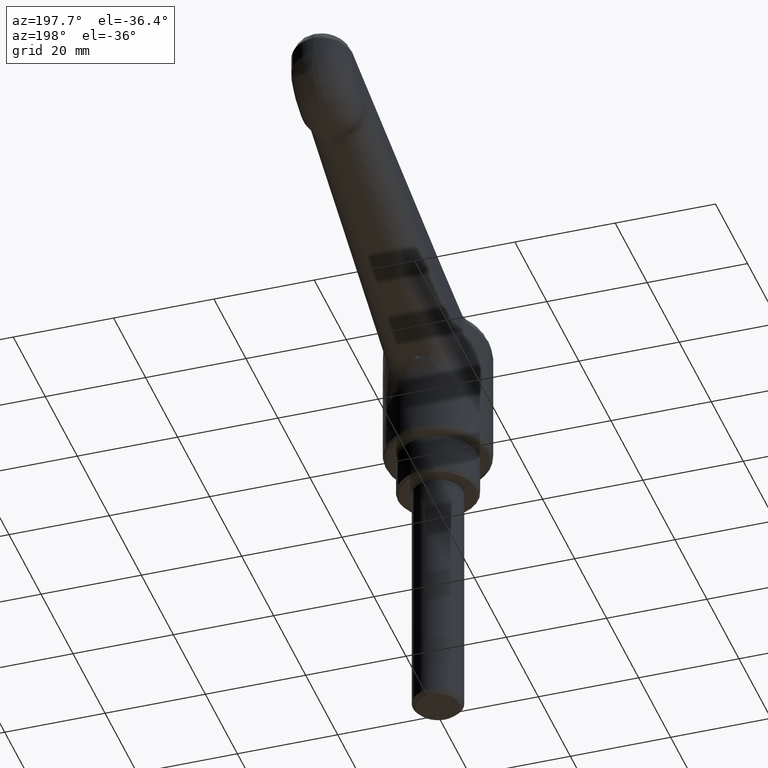
[diagram: clean part render]
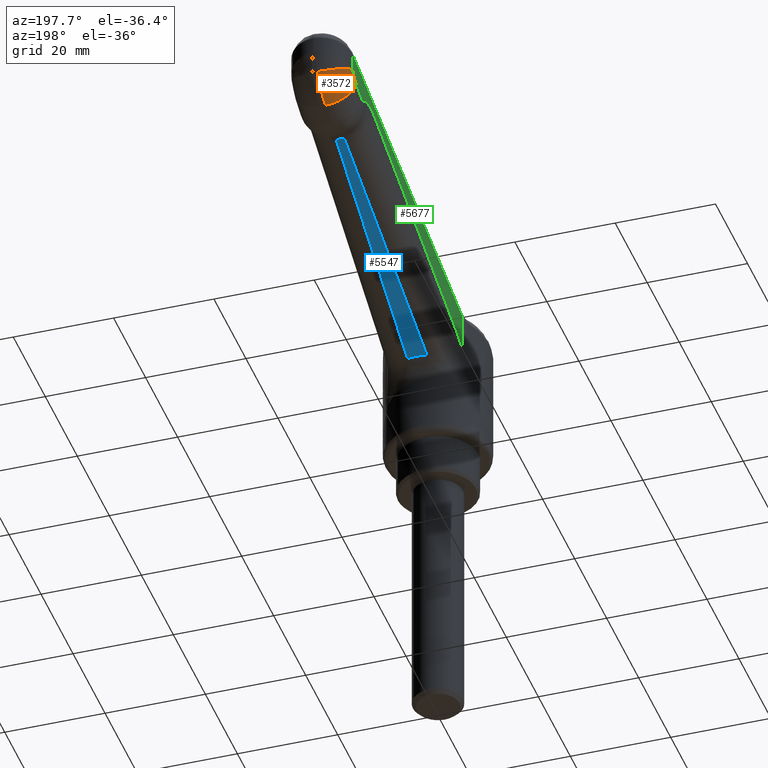
[diagram: same view with three faces highlighted in distinct colors, each labeled with its STEP entity id]
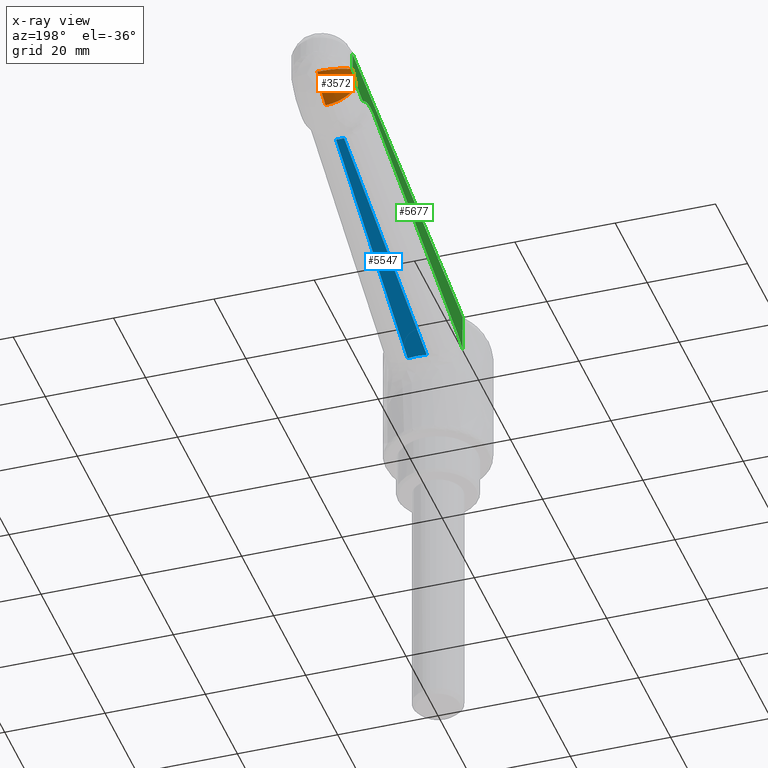
[diagram: x-ray of the same camera — body ghosted, the three highlighted faces saturated]
A machine part, auxiliary view with three faces highlighted in distinct colors.
The next image is the same camera in x-ray (body ghosted, the three faces saturated) — at least one of them is partly hidden behind the body in this view.
Their STEP definitions:

[orange] entity #3572 — the highlighted face is a freeform B-spline surface patch.
#3463=CARTESIAN_POINT('',(69.927543483221299,6.049651987873864,38.315105253744250));
#3464=CARTESIAN_POINT('',(70.397629439013087,6.038757118762429,38.516142541183221));
#3465=CARTESIAN_POINT('',(70.832931695780772,6.028668408276688,38.797957082615127));
#3466=CARTESIAN_POINT('',(71.584557010182024,6.011248488961188,39.491089099015149));
#3467=CARTESIAN_POINT('',(71.900639369220059,6.003922858642467,39.902184666008758));
#3468=CARTESIAN_POINT('',(72.139020671948728,5.998398053955486,40.354479944382227));
#3469=CARTESIAN_POINT('',(72.069531920331926,6.000008548470917,33.303798379318096));
#3470=CARTESIAN_POINT('',(73.103574868421873,5.976043223750905,33.760366379588326));
#3471=CARTESIAN_POINT('',(74.056885869937247,5.953948969594414,34.392639616912099));
#3472=CARTESIAN_POINT('',(75.698492717429673,5.915902541032712,35.934999236902875));
#3473=CARTESIAN_POINT('',(76.386333660197678,5.899960909621694,36.844611654713674));
#3474=CARTESIAN_POINT('',(76.904313322143608,5.887956039975062,37.841593131860911));
#3475=CARTESIAN_POINT('',(71.962772482818480,0.551128534819699,33.258141563875867));
#3476=CARTESIAN_POINT('',(73.007407841583259,0.540233666735947,33.704891049358523));
#3477=CARTESIAN_POINT('',(73.974746288501407,0.530144955222584,34.331145628035301));
#3478=CARTESIAN_POINT('',(75.645024764958166,0.512725035906962,35.871438997809271));
#3479=CARTESIAN_POINT('',(76.347429950218100,0.505399406183320,36.784984594009487));
#3480=CARTESIAN_POINT('',(76.877166235546099,0.499874600901322,37.790085320849151));
#3488=(BOUNDED_SURFACE()B_SPLINE_SURFACE(3,2,((#3463,#3469,#3475),(#3464,#3470,#3476),(#3465,#3471,#3477),(#3466,#3472,#3478),(#3467,#3473,#3479),(#3468,#3474,#3480)),.UNSPECIFIED.,.F.,.F.,.U.)B_SPLINE_SURFACE_WITH_KNOTS((4,2,4),(3,3),(0.0,3.408621642746630,6.817243285493260),(0.0,9.054046237050114),.UNSPECIFIED.)GEOMETRIC_REPRESENTATION_ITEM()RATIONAL_B_SPLINE_SURFACE(((1.0,0.710320617835371,1.0),(1.0,0.711172731616030,1.0),(1.0,0.711959776844960,1.0),(1.0,0.713317426405004,1.0),(1.0,0.713887890644124,1.0),(1.0,0.714316969421183,1.0)))REPRESENTATION_ITEM('')SURFACE());
#3489=CARTESIAN_POINT('',(72.000023528322998,0.550739038748915,33.274163563556897));
#3490=VERTEX_POINT('',#3489);
#3491=CARTESIAN_POINT('',(70.063429511224399,6.046502647905560,38.375896371800998));
#3492=VERTEX_POINT('',#3491);
#3493=CARTESIAN_POINT('',(72.000023528322998,0.550739038748915,33.274163563556897));
#3494=CARTESIAN_POINT('',(72.007166397801996,0.911801240651604,33.277252638479297));
#3495=CARTESIAN_POINT('',(72.001166363362088,1.266840342186170,33.313035923218827));
#3496=CARTESIAN_POINT('',(71.973236535773040,1.790735571573768,33.413730489337297));
#3497=CARTESIAN_POINT('',(71.960748016607710,1.963912799923760,33.455189429724889));
#3498=CARTESIAN_POINT('',(71.937134090348124,2.221448580939451,33.529479038425933));
#3499=CARTESIAN_POINT('',(71.928435714026463,2.307028430277768,33.556299191044090));
#3500=CARTESIAN_POINT('',(71.909422932034232,2.476967483411021,33.613912717264988));
#3501=CARTESIAN_POINT('',(71.899164644148911,2.560845644494711,33.644537234456877));
#3502=CARTESIAN_POINT('',(71.844186401287274,2.974891842412649,33.806560035205941));
#3503=CARTESIAN_POINT('',(71.788512162607702,3.289176326647948,33.964409599192287));
#3504=CARTESIAN_POINT('',(71.704366047852517,3.661070665650973,34.196594401032932));
#3505=CARTESIAN_POINT('',(71.686802555067445,3.734392144138405,34.244790473427059));
#3506=CARTESIAN_POINT('',(71.650181532498436,3.878888057804530,34.344753421321983));
#3507=CARTESIAN_POINT('',(71.631081281995236,3.950211810226688,34.396635691628333));
#3508=CARTESIAN_POINT('',(71.571784225757426,4.159836696211473,34.556946081543749));
#3509=CARTESIAN_POINT('',(71.529873583556395,4.292893776920911,34.669280705176341));
#3510=CARTESIAN_POINT('',(71.397191912108937,4.672637834166773,35.022119692253931));
#3511=CARTESIAN_POINT('',(71.299538837916813,4.900077983935419,35.278313369200163));
#3512=CARTESIAN_POINT('',(71.165563727975808,5.151576198238973,35.625226156649653));
#3513=CARTESIAN_POINT('',(71.138093222684191,5.200343157029159,35.696145769297452));
#3514=CARTESIAN_POINT('',(71.082308437867525,5.293846083585770,35.839729983727771));
#3515=CARTESIAN_POINT('',(71.054036786303371,5.338527912951451,35.912286175835000));
#3516=CARTESIAN_POINT('',(70.968097999832295,5.466484705255413,36.132199428769489));
#3517=CARTESIAN_POINT('',(70.850521583717821,5.620885657406291,36.431392534705900));
#3518=CARTESIAN_POINT('',(70.726973624763900,5.743427356154239,36.742294917366948));
#3519=CARTESIAN_POINT('',(70.632010053795938,5.823253646501218,36.979896281028523));
#3520=CARTESIAN_POINT('',(70.599971039926061,5.847845600342319,37.059835415490070));
#3521=CARTESIAN_POINT('',(70.535104309630569,5.892929720532480,37.221212465426213));
#3522=CARTESIAN_POINT('',(70.502202065343283,5.913459671049195,37.302834376970630));
#3523=CARTESIAN_POINT('',(70.402950644630749,5.968398608358492,37.548322316090932));
#3524=CARTESIAN_POINT('',(70.336054239866613,5.996229846461312,37.712824755208317));
#3525=CARTESIAN_POINT('',(70.234579572771551,6.024928858326964,37.960810343032961));
#3526=CARTESIAN_POINT('',(70.200565963864733,6.032316613386159,38.043677884911837));
#3527=CARTESIAN_POINT('',(70.149254240226611,6.040113045959479,38.168286602543589));
#3528=CARTESIAN_POINT('',(70.123525511154924,6.043189594152286,38.230667844127872));
#3529=CARTESIAN_POINT('',(70.097685560193838,6.045027005165708,38.293164486157423));
#3530=CARTESIAN_POINT('',(70.080433968967796,6.045975604977158,38.334854586955302));
#3531=CARTESIAN_POINT('',(70.071946785798659,6.046305244205724,38.355340508303762));
#3532=CARTESIAN_POINT('',(70.063429511224399,6.046502647905560,38.375896371800998));
#3533=B_SPLINE_CURVE_WITH_KNOTS('',3,(#3493,#3494,#3495,#3496,#3497,#3498,#3499,#3500,#3501,#3502,#3503,#3504,#3505,#3506,#3507,#3508,#3509,#3510,#3511,#3512,#3513,#3514,#3515,#3516,#3517,#3518,#3519,#3520,#3521,#3522,#3523,#3524,#3525,#3526,#3527,#3528,#3529,#3530,#3531,#3532),.UNSPECIFIED.,.F.,.U.,(4,2,2,2,2,2,2,2,2,2,2,2,1,2,2,2,2,2,1,2,4),(0.0,0.124999999999996,0.187499999999993,0.218749999999992,0.249999999999990,0.374999999999984,0.406249999999983,0.437499999999982,0.499999999999982,0.624999999999980,0.656249999999981,0.687499999999982,0.749999999999984,0.812499999999986,0.843749999999989,0.874999999999992,0.937499999999994,0.968749999999996,0.984374999999998,0.992187499999999,1.0),.UNSPECIFIED.);
#3534=EDGE_CURVE('',#3490,#3492,#3533,.T.);
#3535=ORIENTED_EDGE('',*,*,#3534,.T.);
#3536=CARTESIAN_POINT('',(72.139020671948700,5.998398053955600,40.354479944382241));
#3537=VERTEX_POINT('',#3536);
#3538=CARTESIAN_POINT('',(72.139020671948700,5.998398053955600,40.354479944382241));
#3539=CARTESIAN_POINT('',(71.919481195193285,6.003486174190901,39.937459596193079));
#3540=CARTESIAN_POINT('',(71.329273224497328,6.017165031238345,39.149041725567649));
#3541=CARTESIAN_POINT('',(70.517996172529223,6.035967459146099,38.587957232286612));
#3542=CARTESIAN_POINT('',(70.063429511224399,6.046502647905560,38.375896371800998));
#3543=B_SPLINE_CURVE_WITH_KNOTS('',3,(#3538,#3539,#3540,#3541,#3542),.UNSPECIFIED.,.F.,.U.,(4,1,4),(0.000000017542845,1.413835292445219,2.918853842913046),.UNSPECIFIED.);
#3544=EDGE_CURVE('',#3537,#3492,#3543,.T.);
#3545=ORIENTED_EDGE('',*,*,#3544,.F.);
#3546=CARTESIAN_POINT('',(76.877166235546099,0.499874600901440,37.790085320849101));
#3547=VERTEX_POINT('',#3546);
#3548=CARTESIAN_POINT('',(72.139020671948700,5.998398053955600,40.354479944382241));
#3549=CARTESIAN_POINT('',(72.610347016406550,5.987709515617219,40.105937796224332));
#3550=CARTESIAN_POINT('',(73.294854557937953,5.857685483075139,39.743581245761980));
#3551=CARTESIAN_POINT('',(74.299054377176702,5.406225905751520,39.208805185379369));
#3552=CARTESIAN_POINT('',(75.181392336425105,4.771108648322166,38.736012783606512));
#3553=CARTESIAN_POINT('',(75.920560157364221,3.870357948929474,38.335433187844409));
#3554=CARTESIAN_POINT('',(76.391238515926034,2.971867304277374,38.076388021540822));
#3555=CARTESIAN_POINT('',(76.765656568423708,1.920729649035824,37.866212063689993));
#3556=CARTESIAN_POINT('',(76.880384924100170,1.077218228226975,37.795441192828477));
#3557=CARTESIAN_POINT('',(76.877166235546099,0.499874600901440,37.790085320849101));
#3558=B_SPLINE_CURVE_WITH_KNOTS('',3,(#3548,#3549,#3550,#3551,#3552,#3553,#3554,#3555,#3556,#3557),.UNSPECIFIED.,.F.,.U.,(4,1,1,1,1,1,1,4),(0.000000105451647,1.598746205859788,2.331518734475806,3.663837708120269,5.129331440167524,5.995325022927320,6.794706968964809,8.526687954611226),.UNSPECIFIED.);
#3559=EDGE_CURVE('',#3537,#3547,#3558,.T.);
#3560=ORIENTED_EDGE('',*,*,#3559,.T.);
#3561=CARTESIAN_POINT('',(72.000023528322998,0.550739038748915,33.274163563556897));
#3562=CARTESIAN_POINT('',(72.874755309027776,0.541616288689763,33.652049526885463));
#3563=CARTESIAN_POINT('',(74.119665176564922,0.528632901558861,34.417900281001117));
#3564=CARTESIAN_POINT('',(75.748464190350163,0.511645923979434,35.991558852546262));
#3565=CARTESIAN_POINT('',(76.498894999780873,0.503819609895068,37.071904016871549));
#3566=CARTESIAN_POINT('',(76.877166235546099,0.499874600901440,37.790085320849101));
#3567=B_SPLINE_CURVE_WITH_KNOTS('',3,(#3561,#3562,#3563,#3564,#3565,#3566),.UNSPECIFIED.,.F.,.U.,(4,1,1,4),(0.000000013967038,2.858589835511313,4.340809821312137,6.775908831508069),.UNSPECIFIED.);
#3568=EDGE_CURVE('',#3490,#3547,#3567,.T.);
#3569=ORIENTED_EDGE('',*,*,#3568,.F.);
#3570=EDGE_LOOP('',(#3535,#3545,#3560,#3569));
#3571=FACE_OUTER_BOUND('',#3570,.T.);
#3572=ADVANCED_FACE('',(#3571),#3488,.T.);

[blue] entity #5547 — the highlighted face is a freeform B-spline surface patch.
#3171=CARTESIAN_POINT('',(61.163736130805503,-0.794885205271934,33.054697017193099));
#3172=VERTEX_POINT('',#3171);
#3226=CARTESIAN_POINT('',(13.005437633756101,-1.911018015219480,15.526517656288650));
#3227=VERTEX_POINT('',#3226);
#3243=CARTESIAN_POINT('',(61.163736130805503,-0.794885205271934,33.054697017193099));
#3244=CARTESIAN_POINT('',(13.005437633756101,-1.911018015219480,15.526517656288650));
#3245=QUASI_UNIFORM_CURVE('',1,(#3243,#3244),.UNSPECIFIED.,.F.,.U.);
#3246=EDGE_CURVE('',#3172,#3227,#3245,.T.);
#4041=CARTESIAN_POINT('',(61.163736130805503,0.794885205271823,33.054697017193099));
#4042=VERTEX_POINT('',#4041);
#4095=CARTESIAN_POINT('',(13.005437633756101,1.911018015219485,15.526517656288650));
#4096=VERTEX_POINT('',#4095);
#4119=CARTESIAN_POINT('',(13.005437633756101,1.911018015219485,15.526517656288650));
#4120=CARTESIAN_POINT('',(61.163736130805503,0.794885205271823,33.054697017193099));
#4121=QUASI_UNIFORM_CURVE('',1,(#4119,#4120),.UNSPECIFIED.,.F.,.U.);
#4122=EDGE_CURVE('',#4096,#4042,#4121,.T.);
#4381=CARTESIAN_POINT('',(61.163736130805503,0.794885205271823,33.054697017193099));
#4382=CARTESIAN_POINT('',(61.163736130805503,-0.794885205271934,33.054697017193099));
#4383=QUASI_UNIFORM_CURVE('',1,(#4381,#4382),.UNSPECIFIED.,.F.,.U.);
#4384=EDGE_CURVE('',#4042,#3172,#4383,.T.);
#5016=CARTESIAN_POINT('',(13.005437633756101,-1.911018015219480,15.526517656288650));
#5017=CARTESIAN_POINT('',(13.174110096077120,-0.645422018245883,15.587909384507361));
#5018=CARTESIAN_POINT('',(13.174049273290970,0.645421549407732,15.587887246833590));
#5019=CARTESIAN_POINT('',(13.005437633756101,1.911018015219485,15.526517656288650));
#5020=B_SPLINE_CURVE_WITH_KNOTS('',3,(#5016,#5017,#5018,#5019),.UNSPECIFIED.,.F.,.U.,(4,4),(2.039385E-009,3.834676044735982),.UNSPECIFIED.);
#5021=EDGE_CURVE('',#3227,#4096,#5020,.T.);
#5536=CARTESIAN_POINT('',(10.599930889223890,-2.101928707532058,14.650985193807401));
#5537=CARTESIAN_POINT('',(63.569240722494023,-2.101928707532058,33.930228696103633));
#5538=CARTESIAN_POINT('',(10.599930889223890,2.101928810047059,14.650985193807401));
#5539=CARTESIAN_POINT('',(63.569240722494023,2.101928810047059,33.930228696103633));
#5540=B_SPLINE_SURFACE_WITH_KNOTS('',1,1,((#5536,#5538),(#5537,#5539)),.UNSPECIFIED.,.F.,.F.,.U.,(2,2),(2,2),(0.0,56.368759204312802),(0.0,4.203857517579117),.UNSPECIFIED.);
#5541=ORIENTED_EDGE('',*,*,#4384,.T.);
#5542=ORIENTED_EDGE('',*,*,#3246,.T.);
#5543=ORIENTED_EDGE('',*,*,#5021,.T.);
#5544=ORIENTED_EDGE('',*,*,#4122,.T.);
#5545=EDGE_LOOP('',(#5541,#5542,#5543,#5544));
#5546=FACE_OUTER_BOUND('',#5545,.T.);
#5547=ADVANCED_FACE('',(#5546),#5540,.F.);

[green] entity #5677 — the highlighted face is a freeform B-spline surface patch.
#3491=CARTESIAN_POINT('',(70.063429511224399,6.046502647905560,38.375896371800998));
#3492=VERTEX_POINT('',#3491);
#3536=CARTESIAN_POINT('',(72.139020671948700,5.998398053955600,40.354479944382241));
#3537=VERTEX_POINT('',#3536);
#3538=CARTESIAN_POINT('',(72.139020671948700,5.998398053955600,40.354479944382241));
#3539=CARTESIAN_POINT('',(71.919481195193285,6.003486174190901,39.937459596193079));
#3540=CARTESIAN_POINT('',(71.329273224497328,6.017165031238345,39.149041725567649));
#3541=CARTESIAN_POINT('',(70.517996172529223,6.035967459146099,38.587957232286612));
#3542=CARTESIAN_POINT('',(70.063429511224399,6.046502647905560,38.375896371800998));
#3543=B_SPLINE_CURVE_WITH_KNOTS('',3,(#3538,#3539,#3540,#3541,#3542),.UNSPECIFIED.,.F.,.U.,(4,1,4),(0.000000017542845,1.413835292445219,2.918853842913046),.UNSPECIFIED.);
#3544=EDGE_CURVE('',#3537,#3492,#3543,.T.);
#3816=CARTESIAN_POINT('',(66.568802097287204,6.127495299991820,37.103963821205006));
#3817=VERTEX_POINT('',#3816);
#3833=CARTESIAN_POINT('',(70.063429511224399,6.046502647905560,38.375896371800998));
#3834=CARTESIAN_POINT('',(66.568802097287204,6.127495299991820,37.103963821205006));
#3835=QUASI_UNIFORM_CURVE('',1,(#3833,#3834),.UNSPECIFIED.,.F.,.U.);
#3836=EDGE_CURVE('',#3492,#3817,#3835,.T.);
#3924=CARTESIAN_POINT('',(66.091553539716486,6.138556171954260,37.178566971879007));
#3925=VERTEX_POINT('',#3924);
#3940=CARTESIAN_POINT('',(66.568802097287204,6.127495299991820,37.103963821205006));
#3941=CARTESIAN_POINT('',(66.499736315541156,6.129095991616234,37.078729585356307));
#3942=CARTESIAN_POINT('',(66.328973733445295,6.133053642250394,37.056828033453577));
#3943=CARTESIAN_POINT('',(66.166144499055250,6.136827426968571,37.120372761765388));
#3944=CARTESIAN_POINT('',(66.091553539716486,6.138556171954260,37.178566971879007));
#3945=B_SPLINE_CURVE_WITH_KNOTS('',3,(#3940,#3941,#3942,#3943,#3944),.UNSPECIFIED.,.F.,.U.,(4,1,4),(0.000000122250619,0.220626571179982,0.504270991652508),.UNSPECIFIED.);
#3946=EDGE_CURVE('',#3817,#3925,#3945,.T.);
#4043=CARTESIAN_POINT('',(59.410061699998501,6.293408658326110,38.223006701410803));
#4044=VERTEX_POINT('',#4043);
#4058=CARTESIAN_POINT('',(66.091553539716486,6.138556171954260,37.178566971879007));
#4059=CARTESIAN_POINT('',(65.539562045266862,6.151349311184521,37.606627558467622));
#4060=CARTESIAN_POINT('',(64.468424653195640,6.176174349123180,38.204462726037107));
#4061=CARTESIAN_POINT('',(62.784053577810717,6.215211895715009,38.633813382592713));
#4062=CARTESIAN_POINT('',(61.120553886757492,6.253765720132964,38.682093802395151));
#4063=CARTESIAN_POINT('',(59.997231502331992,6.279800214883395,38.436933343695543));
#4064=CARTESIAN_POINT('',(59.410061699998501,6.293408658326110,38.223006701410803));
#4065=B_SPLINE_CURVE_WITH_KNOTS('',3,(#4058,#4059,#4060,#4061,#4062,#4063,#4064),.UNSPECIFIED.,.F.,.U.,(4,1,1,1,4),(0.000000011333954,2.095813538444447,3.640095672643036,5.184380028283845,7.059581360451041),.UNSPECIFIED.);
#4066=EDGE_CURVE('',#3925,#4044,#4065,.T.);
#4097=CARTESIAN_POINT('',(11.251763202949100,7.409541468273670,20.694827340506350));
#4098=VERTEX_POINT('',#4097);
#4113=CARTESIAN_POINT('',(59.410061699998501,6.293408658326110,38.223006701410803));
#4114=CARTESIAN_POINT('',(11.251763202949100,7.409541468273670,20.694827340506350));
#4115=QUASI_UNIFORM_CURVE('',1,(#4113,#4114),.UNSPECIFIED.,.F.,.U.);
#4116=EDGE_CURVE('',#4044,#4098,#4115,.T.);
#4187=CARTESIAN_POINT('',(8.098602834848819,7.482620166061929,18.817905123507799));
#4188=VERTEX_POINT('',#4187);
#4202=CARTESIAN_POINT('',(11.251763202949100,7.409541468273670,20.694827340506350));
#4203=CARTESIAN_POINT('',(10.637732508283930,7.423772448728118,20.470887164559748));
#4204=CARTESIAN_POINT('',(9.524114328540021,7.449582035589697,19.933778718617489));
#4205=CARTESIAN_POINT('',(8.530658955556094,7.472606689109681,19.199961247506788));
#4206=CARTESIAN_POINT('',(8.098602834848819,7.482620166061929,18.817905123507799));
#4207=B_SPLINE_CURVE_WITH_KNOTS('',3,(#4202,#4203,#4204,#4205,#4206),.UNSPECIFIED.,.F.,.U.,(4,1,4),(4.310420E-009,1.961231055828184,3.691736701490552),.UNSPECIFIED.);
#4208=EDGE_CURVE('',#4098,#4188,#4207,.T.);
#4678=CARTESIAN_POINT('',(8.098602834848819,7.482620166061929,25.891804639626351));
#4679=VERTEX_POINT('',#4678);
#4680=CARTESIAN_POINT('',(8.098602834848819,7.482620166061929,18.817905123507799));
#4681=CARTESIAN_POINT('',(8.098602834848819,7.482620166061929,25.891804639626351));
#4682=QUASI_UNIFORM_CURVE('',1,(#4680,#4681),.UNSPECIFIED.,.F.,.U.);
#4683=EDGE_CURVE('',#4188,#4679,#4682,.T.);
#4748=CARTESIAN_POINT('',(8.012310873974581,7.484620097367070,26.550085542636548));
#4749=VERTEX_POINT('',#4748);
#4758=CARTESIAN_POINT('',(8.098602834848819,7.482620166061929,25.891804639626351));
#4759=CARTESIAN_POINT('',(8.099007096611578,7.482610796756304,26.113757597334480));
#4760=CARTESIAN_POINT('',(8.069923378238656,7.483284850726755,26.335741690467039));
#4761=CARTESIAN_POINT('',(8.012310873974581,7.484620097367070,26.550085542636548));
#4762=B_SPLINE_CURVE_WITH_KNOTS('',3,(#4758,#4759,#4760,#4761),.UNSPECIFIED.,.F.,.U.,(4,4),(4.769713E-009,0.665856513143522),.UNSPECIFIED.);
#4763=EDGE_CURVE('',#4679,#4749,#4762,.T.);
#5247=CARTESIAN_POINT('',(72.139020671948700,5.998398053955600,43.940390183805903));
#5248=VERTEX_POINT('',#5247);
#5249=CARTESIAN_POINT('',(8.012310873974581,7.484620097367070,26.550085542636548));
#5250=CARTESIAN_POINT('',(72.139020671948700,5.998398053955600,43.940390183805903));
#5251=QUASI_UNIFORM_CURVE('',1,(#5249,#5250),.UNSPECIFIED.,.F.,.U.);
#5252=EDGE_CURVE('',#4749,#5248,#5251,.T.);
#5608=CARTESIAN_POINT('',(72.139020671948700,5.998398053955600,43.940390183805903));
#5609=CARTESIAN_POINT('',(72.139020671948700,5.998398053955600,40.354479944382241));
#5610=QUASI_UNIFORM_CURVE('',1,(#5608,#5609),.UNSPECIFIED.,.F.,.U.);
#5611=EDGE_CURVE('',#5248,#3537,#5610,.T.);
#5660=CARTESIAN_POINT('',(4.809181843855790,7.558856885554888,17.563037279270080));
#5661=CARTESIAN_POINT('',(75.342151422079908,5.924161225904208,17.563037279270080));
#5662=CARTESIAN_POINT('',(4.809181843855790,7.558856885554888,45.195258926493693));
#5663=CARTESIAN_POINT('',(75.342151422079908,5.924161225904208,45.195258926493693));
#5664=B_SPLINE_SURFACE_WITH_KNOTS('',1,1,((#5660,#5662),(#5661,#5663)),.UNSPECIFIED.,.F.,.F.,.U.,(2,2),(2,2),(0.0,70.551910161400784),(0.0,27.632221647223609),.UNSPECIFIED.);
#5665=ORIENTED_EDGE('',*,*,#5611,.T.);
#5666=ORIENTED_EDGE('',*,*,#3544,.T.);
#5667=ORIENTED_EDGE('',*,*,#3836,.T.);
#5668=ORIENTED_EDGE('',*,*,#3946,.T.);
#5669=ORIENTED_EDGE('',*,*,#4066,.T.);
#5670=ORIENTED_EDGE('',*,*,#4116,.T.);
#5671=ORIENTED_EDGE('',*,*,#4208,.T.);
#5672=ORIENTED_EDGE('',*,*,#4683,.T.);
#5673=ORIENTED_EDGE('',*,*,#4763,.T.);
#5674=ORIENTED_EDGE('',*,*,#5252,.T.);
#5675=EDGE_LOOP('',(#5665,#5666,#5667,#5668,#5669,#5670,#5671,#5672,#5673,#5674));
#5676=FACE_OUTER_BOUND('',#5675,.T.);
#5677=ADVANCED_FACE('',(#5676),#5664,.F.);